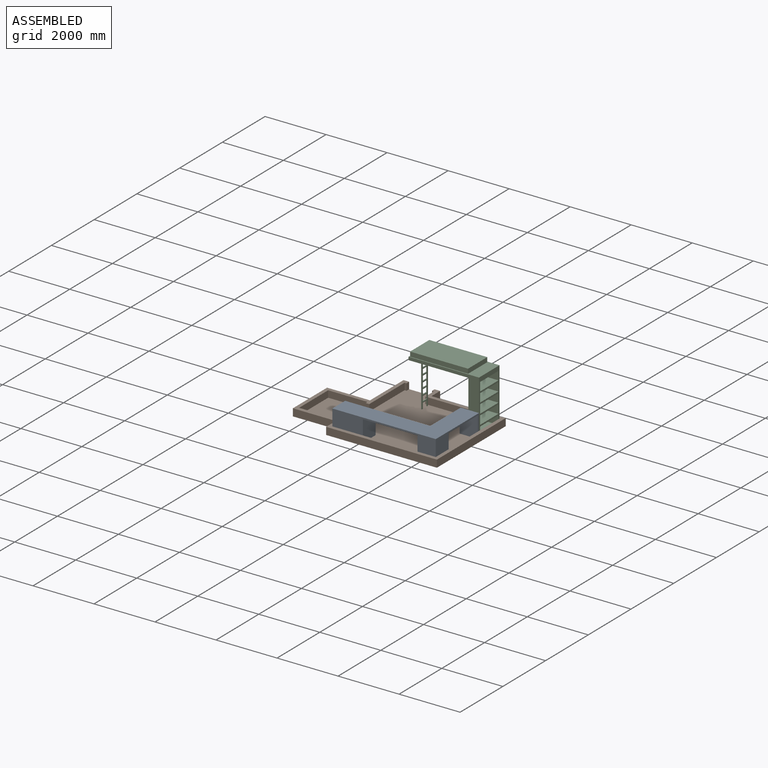
[diagram: assembled view]
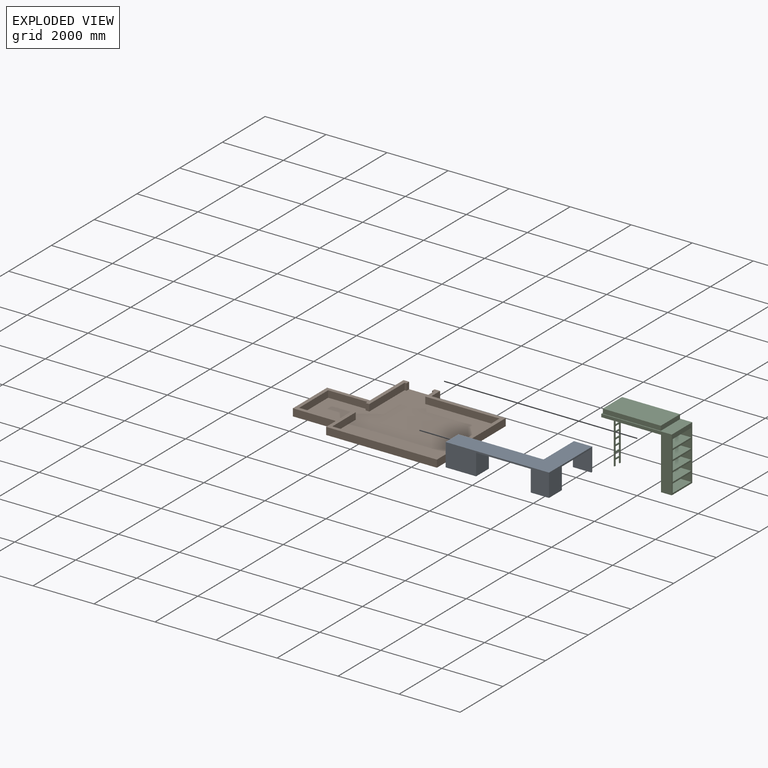
[diagram: exploded view]
GUIDED TOUR — MATED ASSEMBLY (Onshape document 230031c2797c21c1e171ca65, AutoMate assembly 230031c2797c21c1e171ca65_aa69f21b5e3ba76bd54e7748_79c5863198f4fb01ac2dbf42_default)

This assembly has 3 components, labeled P0..P2 below (a component is one placed occurrence of a part; the same part can appear more than once), held together by 5 mates. A mate is a constraint between two components; its type names the relative motion it leaves free:
  PLANAR — leaves sliding in the plane through the listed point (normal = the listed direction) and rotation about that normal free.
Axis/direction vectors are unit vectors and 'through' points are millimeter coordinates, both in the assembly's world frame.

MATES
  1. PLANAR "Planar 6": P0 <-> P1, direction (1.000, 0.000, 0.000) through (581.72, 336.17, 273.49) mm
  2. PLANAR "Planar 5": P0 <-> P1, direction (0.000, -1.000, 0.000) through (-1308.22, -1686.83, -77.21) mm
  3. PLANAR "Planar 3": P2 <-> P1, direction (1.000, 0.000, 0.000) through (581.72, 816.17, 538.37) mm
  4. PLANAR "Planar 2": P2 <-> P1, direction (0.000, 1.000, 0.000) through (231.72, 1296.17, 1223.49) mm
  5. PLANAR "Planar 1": P2 <-> P1, direction (0.000, 0.000, -1.000) through (406.72, 816.17, -476.51) mm

ASSEMBLY ORDER
  1. P2 — the base component [order verified]
  2. P0 [order verified]
  3. P1 [order verified]
Order-tag legend:
  [order verified] — this step's position reverses a verified removal order: the component was checked to insert without passing through the ones already placed.

Of the 3 components, 2 carry the full construction recipe — the FeatureScript program that regenerates the part's solid from scratch; the rest are supplied as boundary geometry only.
Each toured component is shown spotlighted twice — in the assembled view, then in the exploded view, where a leader line traces a displaced component back to its assembled socket (saturated green if recipe-attached, orange if geometry-only; every other component desaturated gray) — followed by its recipe or geometry summary and the mates that hold it.
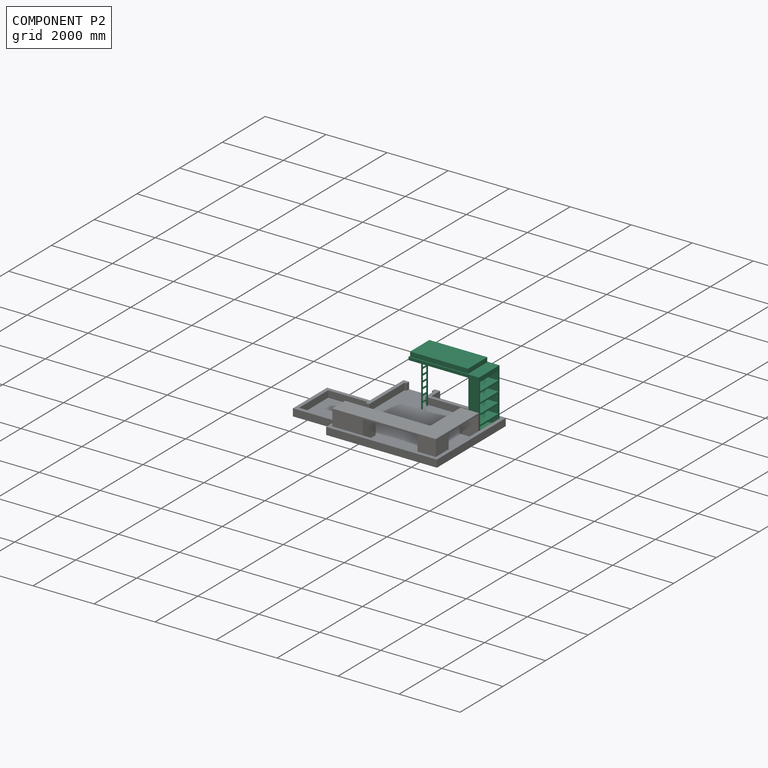
[diagram: component P2 — assembled]
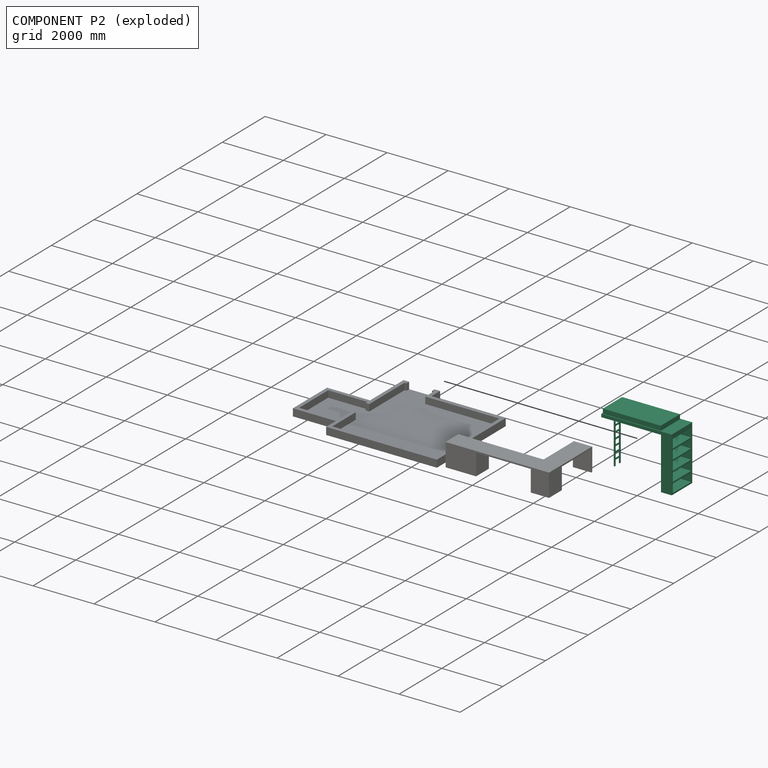
[diagram: component P2 — exploded]
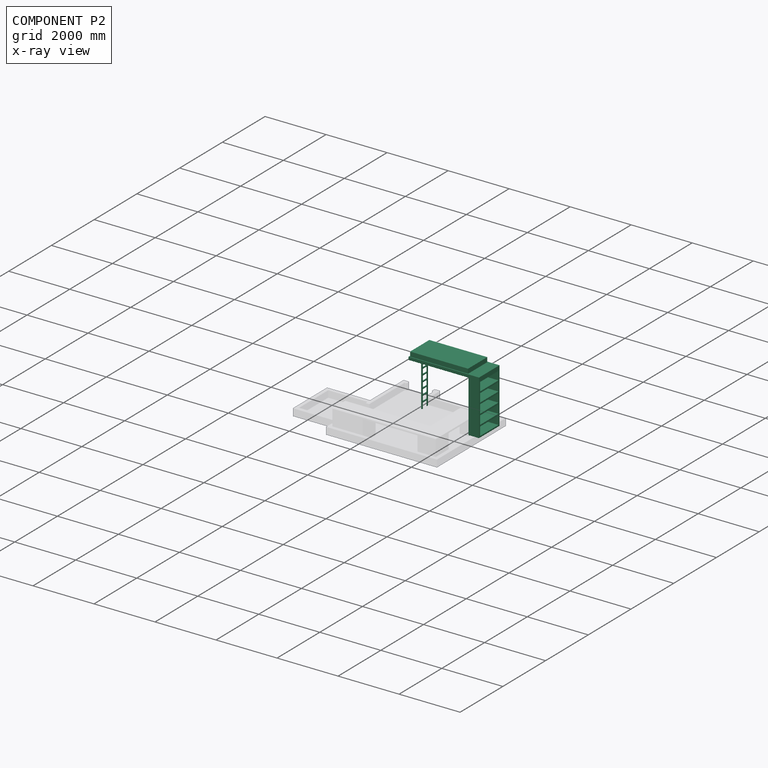
[diagram: component P2 — x-ray view]
COMPONENT P2 — recipe-attached (CADFS 00163201, mesh-verified: the recipe's output STEP matches this component's geometry to below the mesh-comparison resolution (tessellation chordal tolerance ~4.79 mm)).
Held by: PLANAR mate "Planar 3" to P1; PLANAR mate "Planar 2" to P1; PLANAR mate "Planar 1" to P1.
Construction recipe (FeatureScript — the CAD program that rebuilds this solid; sketch coordinates are in the units given by the * unit suffixes, e.g. mm):

FeatureScript 1511;
import(path : "onshape/std/geometry.fs", version : "1511.0");
import(path : "onshape/std/common.fs", version : "1511.0");
const mm = millimeter;
const VERTEX = EntityType.VERTEX;
const EDGE = EntityType.EDGE;
const FACE = EntityType.FACE;
const BODY = EntityType.BODY;
function v(x, y){return vector(x, y);}
function OD(order){return orderDisambiguation(order);}
function OSD(set){return originalSetDisambiguation(set);}
function TD(topology){return topologyDisambiguation(topology);}
function TDD(query){return trueDependencyDisambiguation(query);}
function sQuery(a, b, c) {return sketchEntityQuery(a, b, c);}

annotation { "Feature Type Name" : "Feature", "Feature Type Description" : "" }
export const myFeature = defineFeature(function(context is Context, id is Id, definition is map)
    precondition{}
    {
        {
            var Q0;
            Q0=qCreatedBy(makeId("Top.planeOp"),FACE);
            var sketch = newSketch(context, id + "F0", { "sketchPlane" : qUnion([Q0])});
            skLineSegment(sketch, "E0.bottom", {"start": v(-450, 950) * mm, "end": v(450, 950) * mm});
            skLineSegment(sketch, "E0.top", {"start": v(-450, -950) * mm, "end": v(450, -950) * mm});
            skLineSegment(sketch, "E0.left", {"start": v(-450, 950) * mm, "end": v(-450, -950) * mm});
            skLineSegment(sketch, "E0.right", {"start": v(450, 950) * mm, "end": v(450, -950) * mm});
            skPoint(sketch, "E0.middle", {"position": v(0, 0) * mm});
            skSolve(sketch);
        }
        {
            var Q0;
            Q0 = qSketchRegion(id + "F0", true);
            extrude(context, id + "F1", {"entities" : qUnion([Q0]), "depth" : 150 * mm});
        }
        {
            var Q0;
            Q0=makeQuery(id+"F1.opExtrude","CAP_FACE",FACE,{"disambiguationData":[OSD([sQuery(id+"F0.wireOp",EDGE,"E0.bottom"),sQuery(id+"F0.wireOp",EDGE,"E0.top"),sQuery(id+"F0.wireOp",EDGE,"E0.left"),sQuery(id+"F0.wireOp",EDGE,"E0.right")])],"isStart":true});
            var sketch = newSketch(context, id + "F2", { "sketchPlane" : qUnion([Q0])});
            skLineSegment(sketch, "E1.0", {"start": v(-480, -980) * mm, "end": v(480, -980) * mm, "construction": true});
            skLineSegment(sketch, "E1.1", {"start": v(-480, 980) * mm, "end": v(-480, -980) * mm});
            skLineSegment(sketch, "E1.2", {"start": v(480, 980) * mm, "end": v(-480, 980) * mm});
            skLineSegment(sketch, "E1.3", {"start": v(480, -980) * mm, "end": v(480, 980) * mm});
            skLineSegment(sketch, "E2", {"start": v(-480, -980) * mm, "end": v(-480, -1330) * mm});
            skLineSegment(sketch, "E3", {"start": v(-480, -1330) * mm, "end": v(480, -1330) * mm});
            skLineSegment(sketch, "E4", {"start": v(480, -1330) * mm, "end": v(480, -980) * mm});
            skSolve(sketch);
        }
        {
            var Q0;
            Q0 = qSketchRegion(id + "F2", true);
            extrude(context, id + "F3", {"entities" : qUnion([Q0]), "operationType" : NewBodyOperationType.ADD, "depth" : 100 * mm});
        }
        {
            var Q0;
            Q0=makeQuery(id+"F3.opExtrude","CAP_FACE",FACE,{"disambiguationData":[OSD([sQuery(id+"F2.wireOp",EDGE,"E1.1"),sQuery(id+"F2.wireOp",EDGE,"E1.2"),sQuery(id+"F2.wireOp",EDGE,"E1.3"),sQuery(id+"F2.wireOp",EDGE,"E2"),sQuery(id+"F2.wireOp",EDGE,"E3"),sQuery(id+"F2.wireOp",EDGE,"E4")])],"isStart":false});
            var sketch = newSketch(context, id + "F4", { "sketchPlane" : qUnion([Q0])});
            skLineSegment(sketch, "E5.0", {"start": v(-480, -980) * mm, "end": v(480, -980) * mm});
            skLineSegment(sketch, "E6", {"start": v(-480, -980) * mm, "end": v(-480, -1330) * mm});
            skLineSegment(sketch, "E7", {"start": v(-480, -1330) * mm, "end": v(480, -1330) * mm});
            skLineSegment(sketch, "E8", {"start": v(480, -1330) * mm, "end": v(480, -980) * mm});
            skSolve(sketch);
        }
        {
            var Q0;
            Q0 = qSketchRegion(id + "F4", true);
            extrude(context, id + "F5", {"entities" : qUnion([Q0]), "operationType" : NewBodyOperationType.ADD, "depth" : 1700 * mm});
        }
        {
            var Q0;
            Q0=makeQuery(id+"F5.opExtrude","SWEPT_FACE",FACE,{"disambiguationData":[OSD([sQuery(id+"F4.wireOp",EDGE,"E5.0")])]});
            var sketch = newSketch(context, id + "F6", { "sketchPlane" : qUnion([Q0])});
            skLineSegment(sketch, "E9.bottom", {"start": v(-430, -150) * mm, "end": v(430, -150) * mm});
            skLineSegment(sketch, "E9.top", {"start": v(-430, -430) * mm, "end": v(430, -430) * mm});
            skLineSegment(sketch, "E9.left", {"start": v(-430, -150) * mm, "end": v(-430, -430) * mm});
            skLineSegment(sketch, "E9.right", {"start": v(430, -150) * mm, "end": v(430, -430) * mm});
            skLineSegment(sketch, "E10.bottom", {"start": v(430, -480) * mm, "end": v(-430, -480) * mm});
            skLineSegment(sketch, "E10.top", {"start": v(430, -760) * mm, "end": v(-430, -760) * mm});
            skLineSegment(sketch, "E10.left", {"start": v(430, -480) * mm, "end": v(430, -760) * mm});
            skLineSegment(sketch, "E10.right", {"start": v(-430, -480) * mm, "end": v(-430, -760) * mm});
            skLineSegment(sketch, "E11.bottom", {"start": v(-430, -810) * mm, "end": v(430, -810) * mm});
            skLineSegment(sketch, "E11.top", {"start": v(-430, -1090) * mm, "end": v(430, -1090) * mm});
            skLineSegment(sketch, "E11.left", {"start": v(-430, -810) * mm, "end": v(-430, -1090) * mm});
            skLineSegment(sketch, "E11.right", {"start": v(430, -810) * mm, "end": v(430, -1090) * mm});
            skLineSegment(sketch, "E12.bottom", {"start": v(430, -1140) * mm, "end": v(-430, -1140) * mm});
            skLineSegment(sketch, "E12.top", {"start": v(430, -1420) * mm, "end": v(-430, -1420) * mm});
            skLineSegment(sketch, "E12.left", {"start": v(430, -1140) * mm, "end": v(430, -1420) * mm});
            skLineSegment(sketch, "E12.right", {"start": v(-430, -1140) * mm, "end": v(-430, -1420) * mm});
            skLineSegment(sketch, "E13.bottom", {"start": v(-430, -1470) * mm, "end": v(430, -1470) * mm});
            skLineSegment(sketch, "E13.top", {"start": v(-430, -1750) * mm, "end": v(430, -1750) * mm});
            skLineSegment(sketch, "E13.left", {"start": v(-430, -1470) * mm, "end": v(-430, -1750) * mm});
            skLineSegment(sketch, "E13.right", {"start": v(430, -1470) * mm, "end": v(430, -1750) * mm});
            skPoint(sketch, "E14", {"position": v(0, -150) * mm});
            skLineSegment(sketch, "E15", {"start": v(430, -150) * mm, "end": v(430, -100) * mm, "construction": true});
            skLineSegment(sketch, "E16", {"start": v(430, -430) * mm, "end": v(430, -480) * mm, "construction": true});
            skLineSegment(sketch, "E17", {"start": v(430, -760) * mm, "end": v(430, -810) * mm, "construction": true});
            skLineSegment(sketch, "E18", {"start": v(430, -1090) * mm, "end": v(430, -1140) * mm, "construction": true});
            skLineSegment(sketch, "E19", {"start": v(430, -1420) * mm, "end": v(430, -1470) * mm, "construction": true});
            skLineSegment(sketch, "E20", {"start": v(430, -1750) * mm, "end": v(430, -1800) * mm, "construction": true});
            skLineSegment(sketch, "E21", {"start": v(430, -150) * mm, "end": v(480, -150) * mm, "construction": true});
            skSolve(sketch);
        }
        {
            var Q0;
            Q0 = qSketchRegion(id + "F6", true);
            extrude(context, id + "F7", {"entities" : qUnion([Q0]), "operationType" : NewBodyOperationType.REMOVE, "endBound" : BoundingType.UP_TO_NEXT, "oppositeDirection" : true, "depth" : 25 * mm});
        }
        {
            var Q0;
            Q0=makeQuery(id+"F1.opExtrude","SWEPT_FACE",FACE,{"disambiguationData":[OSD([sQuery(id+"F0.wireOp",EDGE,"E0.top")])]});
            var sketch = newSketch(context, id + "F8", { "sketchPlane" : qUnion([Q0])});
            skLineSegment(sketch, "E22", {"start": v(-480, -100) * mm, "end": v(480, -100) * mm});
            skLineSegment(sketch, "E23", {"start": v(480, -100) * mm, "end": v(-480, -449.41) * mm});
            skLineSegment(sketch, "E24", {"start": v(-480, -449.41) * mm, "end": v(-480, -100) * mm});
            skSolve(sketch);
        }
        {
            var Q0;
            Q0 = qSketchRegion(id + "F8", true);
            extrude(context, id + "F9", {"entities" : qUnion([Q0]), "operationType" : NewBodyOperationType.ADD, "oppositeDirection" : true, "depth" : 50 * mm});
        }
        {
            var Q0;
            Q0=makeQuery(id+"F3.opExtrude","SWEPT_FACE",FACE,{"disambiguationData":[OSD([sQuery(id+"F2.wireOp",EDGE,"E1.2")])]});
            var sketch = newSketch(context, id + "F10", { "sketchPlane" : qUnion([Q0])});
            skLineSegment(sketch, "E25.bottom", {"start": v(-430, 0) * mm, "end": v(-390, 0) * mm});
            skLineSegment(sketch, "E25.top", {"start": v(-430, -1800) * mm, "end": v(-390, -1800) * mm});
            skLineSegment(sketch, "E25.left", {"start": v(-430, 0) * mm, "end": v(-430, -1800) * mm});
            skLineSegment(sketch, "E25.right", {"start": v(-390, 0) * mm, "end": v(-390, -1800) * mm});
            skLineSegment(sketch, "E26.bottom", {"start": v(-190, 0) * mm, "end": v(-150, 0) * mm});
            skLineSegment(sketch, "E26.top", {"start": v(-190, -1800) * mm, "end": v(-150, -1800) * mm});
            skLineSegment(sketch, "E26.left", {"start": v(-190, 0) * mm, "end": v(-190, -1800) * mm});
            skLineSegment(sketch, "E26.right", {"start": v(-150, 0) * mm, "end": v(-150, -1800) * mm});
            skSolve(sketch);
        }
        {
            var Q0;
            Q0 = qSketchRegion(id + "F10", true);
            extrude(context, id + "F11", {"entities" : qUnion([Q0]), "operationType" : NewBodyOperationType.ADD, "depth" : 30 * mm});
        }
        {
            var Q0;
            Q0=makeQuery(id+"F11.opExtrude","CAP_FACE",FACE,{"disambiguationData":[OSD([sQuery(id+"F10.wireOp",EDGE,"E25.bottom"),sQuery(id+"F10.wireOp",EDGE,"E25.top"),sQuery(id+"F10.wireOp",EDGE,"E25.left"),sQuery(id+"F10.wireOp",EDGE,"E25.right")])],"isStart":false});
            var sketch = newSketch(context, id + "F12", { "sketchPlane" : qUnion([Q0])});
            skLineSegment(sketch, "E27.bottom", {"start": v(-390, -180) * mm, "end": v(-190, -180) * mm});
            skLineSegment(sketch, "E27.top", {"start": v(-390, -220) * mm, "end": v(-190, -220) * mm});
            skLineSegment(sketch, "E27.left", {"start": v(-390, -180) * mm, "end": v(-390, -220) * mm});
            skLineSegment(sketch, "E27.right", {"start": v(-190, -180) * mm, "end": v(-190, -220) * mm});
            skLineSegment(sketch, "E28.bottom", {"start": v(-390, -380) * mm, "end": v(-190, -380) * mm});
            skLineSegment(sketch, "E28.top", {"start": v(-390, -420) * mm, "end": v(-190, -420) * mm});
            skLineSegment(sketch, "E28.left", {"start": v(-390, -380) * mm, "end": v(-390, -420) * mm});
            skLineSegment(sketch, "E28.right", {"start": v(-190, -380) * mm, "end": v(-190, -420) * mm});
            skLineSegment(sketch, "E29.bottom", {"start": v(-390, -580) * mm, "end": v(-190, -580) * mm});
            skLineSegment(sketch, "E29.top", {"start": v(-390, -620) * mm, "end": v(-190, -620) * mm});
            skLineSegment(sketch, "E29.left", {"start": v(-390, -580) * mm, "end": v(-390, -620) * mm});
            skLineSegment(sketch, "E29.right", {"start": v(-190, -580) * mm, "end": v(-190, -620) * mm});
            skLineSegment(sketch, "E30.bottom", {"start": v(-390, -780) * mm, "end": v(-190, -780) * mm});
            skLineSegment(sketch, "E30.top", {"start": v(-390, -820) * mm, "end": v(-190, -820) * mm});
            skLineSegment(sketch, "E30.left", {"start": v(-390, -780) * mm, "end": v(-390, -820) * mm});
            skLineSegment(sketch, "E30.right", {"start": v(-190, -780) * mm, "end": v(-190, -820) * mm});
            skLineSegment(sketch, "E31.bottom", {"start": v(-390, -980) * mm, "end": v(-190, -980) * mm});
            skLineSegment(sketch, "E31.top", {"start": v(-390, -1020) * mm, "end": v(-190, -1020) * mm});
            skLineSegment(sketch, "E31.left", {"start": v(-390, -980) * mm, "end": v(-390, -1020) * mm});
            skLineSegment(sketch, "E31.right", {"start": v(-190, -980) * mm, "end": v(-190, -1020) * mm});
            skLineSegment(sketch, "E32.bottom", {"start": v(-390, -1180) * mm, "end": v(-190, -1180) * mm});
            skLineSegment(sketch, "E32.top", {"start": v(-390, -1220) * mm, "end": v(-190, -1220) * mm});
            skLineSegment(sketch, "E32.left", {"start": v(-390, -1180) * mm, "end": v(-390, -1220) * mm});
            skLineSegment(sketch, "E32.right", {"start": v(-190, -1180) * mm, "end": v(-190, -1220) * mm});
            skLineSegment(sketch, "E33.bottom", {"start": v(-390, -1380) * mm, "end": v(-190, -1380) * mm});
            skLineSegment(sketch, "E33.top", {"start": v(-390, -1420) * mm, "end": v(-190, -1420) * mm});
            skLineSegment(sketch, "E33.left", {"start": v(-390, -1380) * mm, "end": v(-390, -1420) * mm});
            skLineSegment(sketch, "E33.right", {"start": v(-190, -1380) * mm, "end": v(-190, -1420) * mm});
            skLineSegment(sketch, "E34.bottom", {"start": v(-390, -1580) * mm, "end": v(-190, -1580) * mm});
            skLineSegment(sketch, "E34.top", {"start": v(-390, -1620) * mm, "end": v(-190, -1620) * mm});
            skLineSegment(sketch, "E34.left", {"start": v(-390, -1580) * mm, "end": v(-390, -1620) * mm});
            skLineSegment(sketch, "E34.right", {"start": v(-190, -1580) * mm, "end": v(-190, -1620) * mm});
            skLineSegment(sketch, "E35", {"start": v(-390, -220) * mm, "end": v(-390, -380) * mm, "construction": true});
            skLineSegment(sketch, "E36", {"start": v(-390, -420) * mm, "end": v(-390, -580) * mm, "construction": true});
            skLineSegment(sketch, "E37", {"start": v(-390, -620) * mm, "end": v(-390, -780) * mm, "construction": true});
            skLineSegment(sketch, "E38", {"start": v(-390, -820) * mm, "end": v(-390, -980) * mm, "construction": true});
            skLineSegment(sketch, "E39", {"start": v(-390, -1020) * mm, "end": v(-390, -1180) * mm, "construction": true});
            skLineSegment(sketch, "E40", {"start": v(-390, -1220) * mm, "end": v(-390, -1380) * mm, "construction": true});
            skLineSegment(sketch, "E41", {"start": v(-390, -1420) * mm, "end": v(-390, -1580) * mm, "construction": true});
            skLineSegment(sketch, "E42", {"start": v(-190, -180) * mm, "end": v(-190, 0) * mm, "construction": true});
            skLineSegment(sketch, "E43", {"start": v(-190, -1620) * mm, "end": v(-190, -1800) * mm, "construction": true});
            skSolve(sketch);
        }
        {
            var Q0;
            Q0 = qSketchRegion(id + "F12", true);
            var Q1;
            {var subQ4=sQuery(id+"F2.wireOp",EDGE,"E1.2");Q1=makeQuery(id+"F11.boolean.opBoolean","SPLIT",FACE,{"disambiguationData":[TD([makeQuery(id+"F5.opExtrude","SWEPT_FACE",FACE,{"disambiguationData":[OSD([sQuery(id+"F4.wireOp",EDGE,"E8")])]})])],"derivedFrom":makeQuery(id+"F3.opExtrude","SWEPT_FACE",FACE,{"disambiguationData":[OSD([subQ4])]})});}
            extrude(context, id + "F13", {"entities" : qUnion([Q0]), "operationType" : NewBodyOperationType.ADD, "endBound" : BoundingType.UP_TO_SURFACE, "oppositeDirection" : true, "endBoundEntityFace" : qUnion([Q1]), "depth" : 25 * mm});
        }
    });
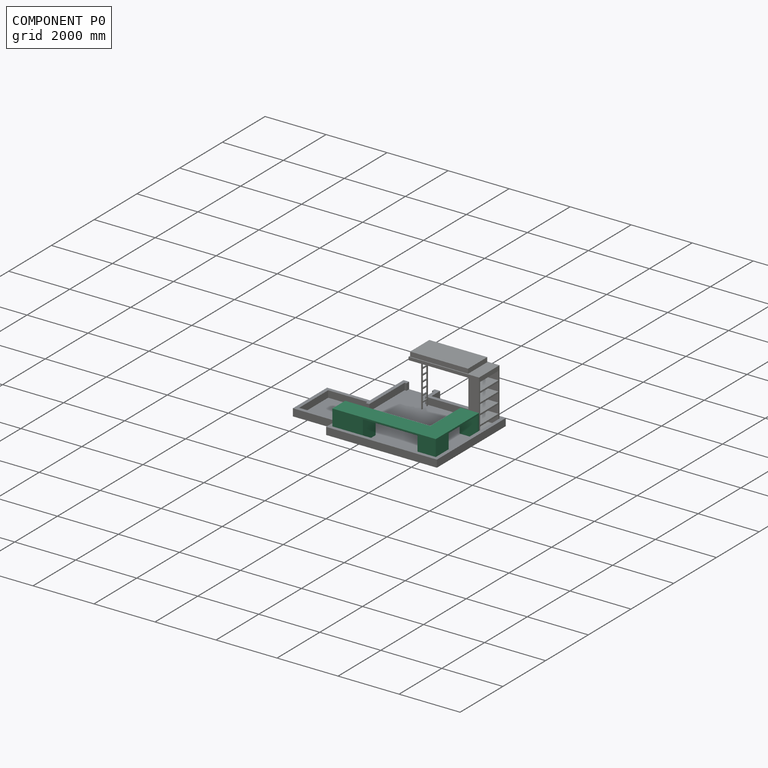
[diagram: component P0 — assembled]
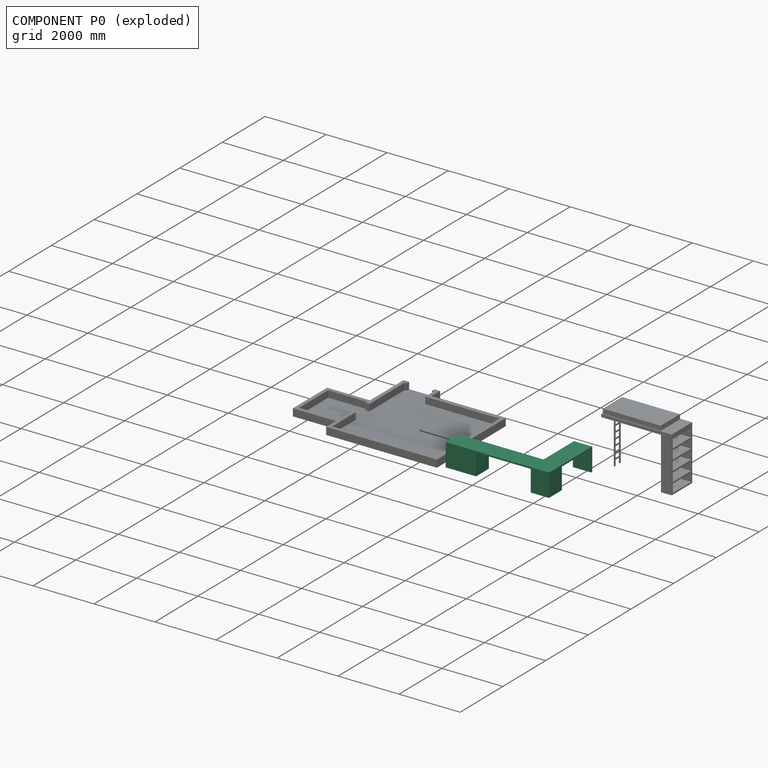
[diagram: component P0 — exploded]
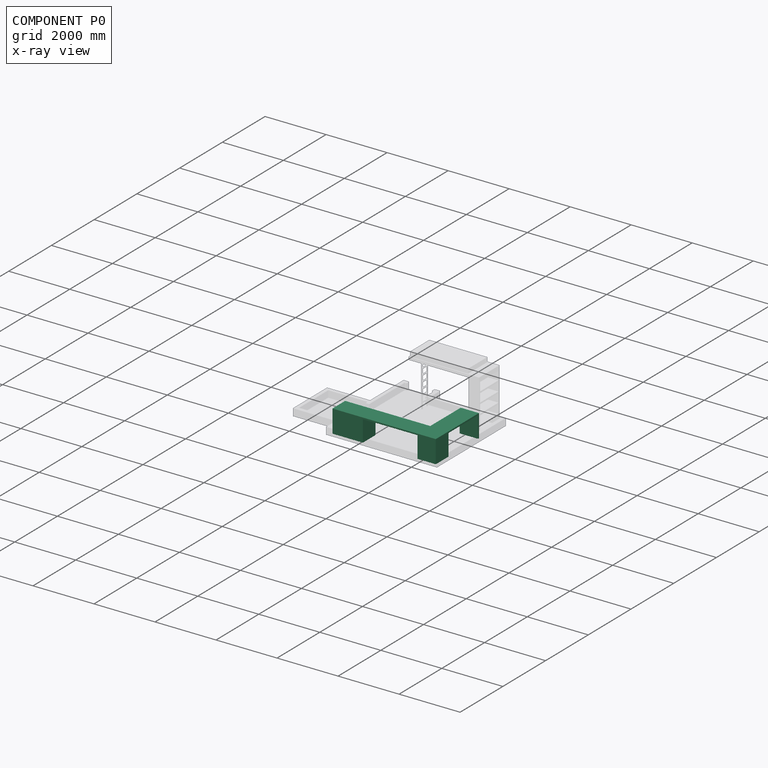
[diagram: component P0 — x-ray view]
COMPONENT P0 — recipe-attached (CADFS 00163205, mesh-verified: the recipe's output STEP matches this component's geometry to below the mesh-comparison resolution (tessellation chordal tolerance ~6.03 mm)).
Held by: PLANAR mate "Planar 6" to P1; PLANAR mate "Planar 5" to P1.
Construction recipe (FeatureScript — the CAD program that rebuilds this solid; sketch coordinates are in the units given by the * unit suffixes, e.g. mm):

FeatureScript 1511;
import(path : "onshape/std/geometry.fs", version : "1511.0");
import(path : "onshape/std/common.fs", version : "1511.0");
const mm = millimeter;
const VERTEX = EntityType.VERTEX;
const EDGE = EntityType.EDGE;
const FACE = EntityType.FACE;
const BODY = EntityType.BODY;
function v(x, y){return vector(x, y);}
function OD(order){return orderDisambiguation(order);}
function OSD(set){return originalSetDisambiguation(set);}
function TD(topology){return topologyDisambiguation(topology);}
function TDD(query){return trueDependencyDisambiguation(query);}
function sQuery(a, b, c) {return sketchEntityQuery(a, b, c);}

annotation { "Feature Type Name" : "Feature", "Feature Type Description" : "" }
export const myFeature = defineFeature(function(context is Context, id is Id, definition is map)
    precondition{}
    {
        {
            var Q0;
            Q0=qCreatedBy(makeId("Top.planeOp"),FACE);
            var sketch = newSketch(context, id + "F0", { "sketchPlane" : qUnion([Q0])});
            skLineSegment(sketch, "E0.top", {"start": v(-1423, 0) * mm, "end": v(0, 0) * mm});
            skLineSegment(sketch, "E0.left", {"start": v(-1423, 600) * mm, "end": v(-1423, 0) * mm});
            skLineSegment(sketch, "E1.top", {"start": v(0, -2791) * mm, "end": v(600, -2791) * mm});
            skLineSegment(sketch, "E1.right", {"start": v(600, 600) * mm, "end": v(600, -2791) * mm});
            skLineSegment(sketch, "E2", {"start": v(0, 0) * mm, "end": v(0, -2791) * mm});
            skLineSegment(sketch, "E3", {"start": v(-1423, 600) * mm, "end": v(600, 600) * mm});
            skSolve(sketch);
        }
        {
            var Q0;
            Q0 = qSketchRegion(id + "F0", true);
            extrude(context, id + "F1", {"entities" : qUnion([Q0]), "oppositeDirection" : true, "depth" : 50 * mm});
        }
        {
            var Q0;
            Q0=makeQuery(id+"F1.opExtrude","CAP_FACE",FACE,{"disambiguationData":[OSD([sQuery(id+"F0.wireOp",EDGE,"E0.top"),sQuery(id+"F0.wireOp",EDGE,"E0.left"),sQuery(id+"F0.wireOp",EDGE,"E1.top"),sQuery(id+"F0.wireOp",EDGE,"E1.right"),sQuery(id+"F0.wireOp",EDGE,"E2"),sQuery(id+"F0.wireOp",EDGE,"E3")])],"isStart":false});
            var sketch = newSketch(context, id + "F2", { "sketchPlane" : qUnion([Q0])});
            skLineSegment(sketch, "E4.bottom", {"start": v(-1423, 0) * mm, "end": v(-1373, 0) * mm});
            skLineSegment(sketch, "E4.top", {"start": v(-1423, -600) * mm, "end": v(-1373, -600) * mm});
            skLineSegment(sketch, "E4.left", {"start": v(-1423, 0) * mm, "end": v(-1423, -600) * mm});
            skLineSegment(sketch, "E4.right", {"start": v(-1373, 0) * mm, "end": v(-1373, -600) * mm});
            skLineSegment(sketch, "E5.bottom", {"start": v(0, 0) * mm, "end": v(600, 0) * mm});
            skLineSegment(sketch, "E5.top", {"start": v(0, -600) * mm, "end": v(600, -600) * mm});
            skLineSegment(sketch, "E5.left", {"start": v(0, 0) * mm, "end": v(0, -600) * mm});
            skLineSegment(sketch, "E5.right", {"start": v(600, 0) * mm, "end": v(600, -600) * mm});
            skLineSegment(sketch, "E6.bottom", {"start": v(0, 2791) * mm, "end": v(600, 2791) * mm});
            skLineSegment(sketch, "E6.top", {"start": v(0, 1791) * mm, "end": v(600, 1791) * mm});
            skLineSegment(sketch, "E6.left", {"start": v(0, 2791) * mm, "end": v(0, 1791) * mm});
            skLineSegment(sketch, "E6.right", {"start": v(600, 2791) * mm, "end": v(600, 1791) * mm});
            skSolve(sketch);
        }
        {
            var Q0;
            Q0 = qSketchRegion(id + "F2", true);
            extrude(context, id + "F3", {"entities" : qUnion([Q0]), "operationType" : NewBodyOperationType.ADD, "depth" : 700 * mm});
        }
    });
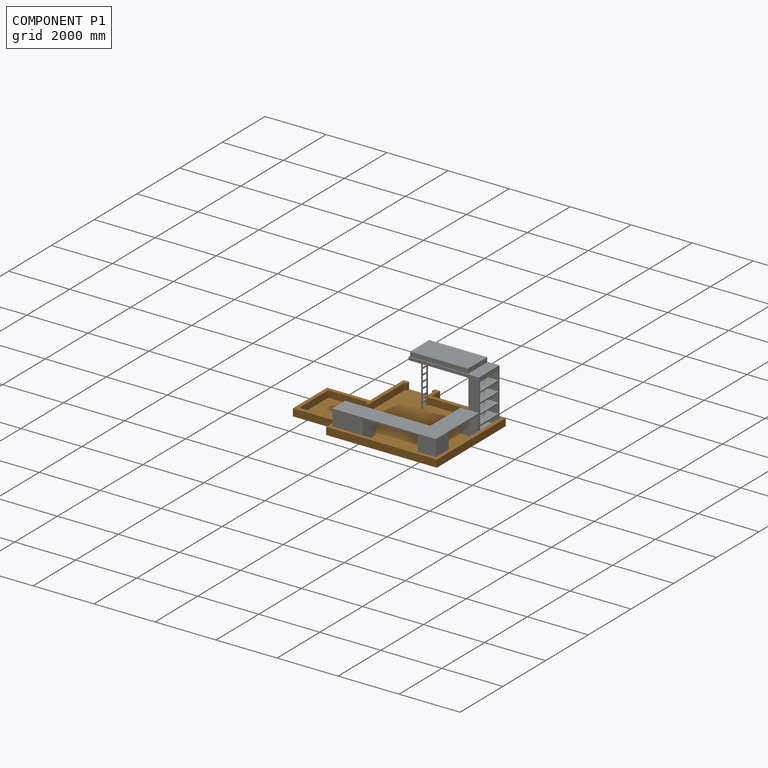
[diagram: component P1 — assembled]
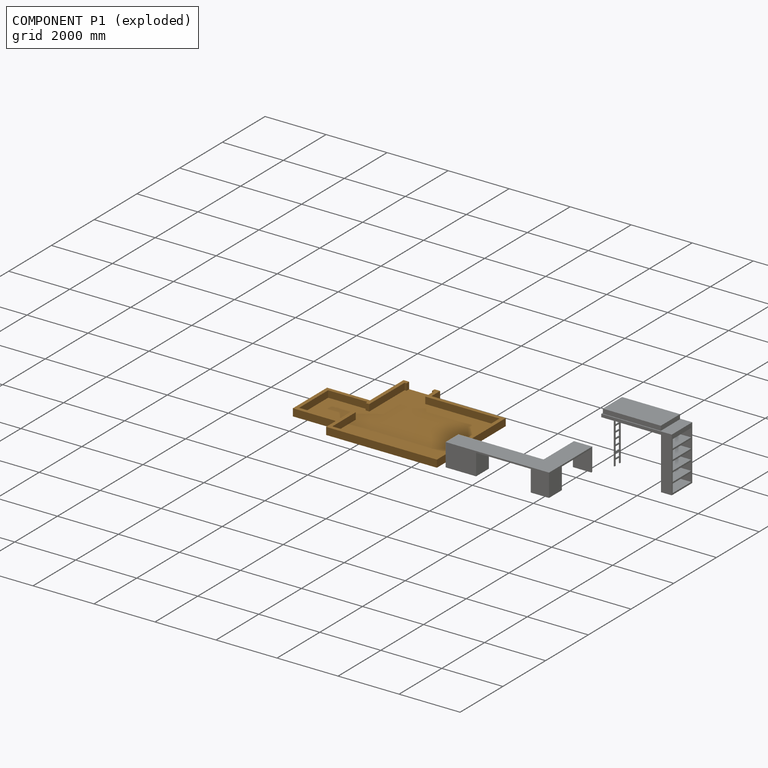
[diagram: component P1 — exploded]
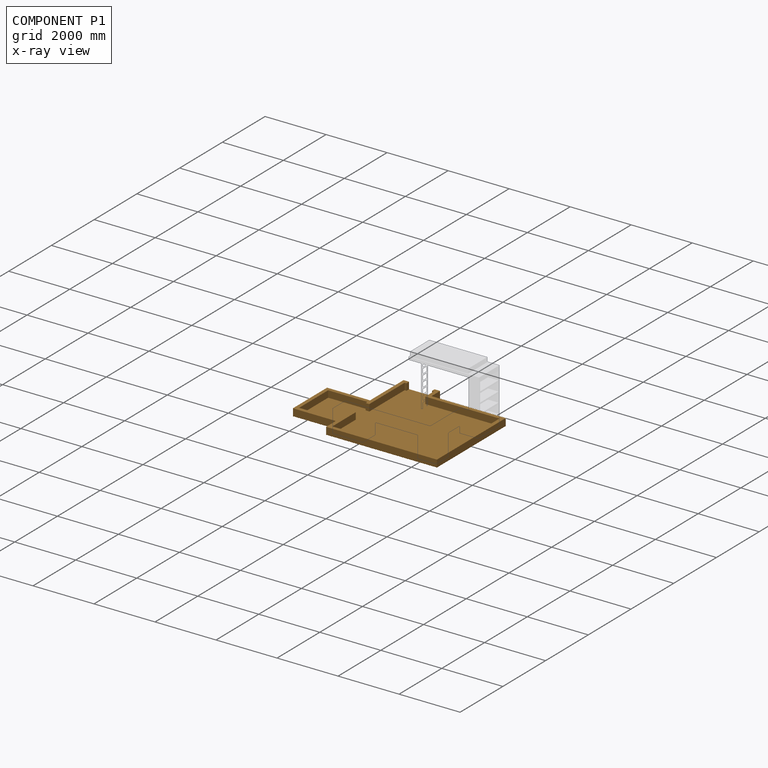
[diagram: component P1 — x-ray view]
COMPONENT P1 — geometry summary (no construction recipe available for this part):
  bounding box: 5039.0 x 3626.0 x 240.0 mm
  B-rep topology: 1 solid, 30 faces, 168 edges
  volume: 730862300 mm^3 (17% of its bounding box)
Held by: PLANAR mate "Planar 6" to P0; PLANAR mate "Planar 5" to P0; PLANAR mate "Planar 3" to P2; PLANAR mate "Planar 2" to P2; PLANAR mate "Planar 1" to P2.
PROVENANCE & LICENSES
Assembly (occurrences, transforms, mates, per-part STEP geometry): AutoMate dataset, Zenodo record 7776208, CC0.
Construction recipes: CADFS (HuggingFace VladPyatov/CADFS, CC-BY-4.0, layered over the ABC dataset), FeatureScript reconstruction programs keyed by ABC model id.
Join: ABC meta listings map ABC model id -> Onshape documentId; within a shared document, parts are matched by geometric signature (bounding-box dims + volume at 0.1% relative tolerance, exact B-rep face/solid counts).
Verification: 2 of this assembly's 3 components carry a recipe attachment, and every attachment is mesh-verified: the CADFS STEP and the AutoMate member STEP were compared as meshes in their shared local frame (symmetric sampled-point-to-mesh distance); worst across the 2 attachments: below the mesh-comparison resolution (tessellation chordal tolerance ~6.03 mm) on a 4019 mm part.
Renders: orthographic iso camera (az 35 / el 25); the floor grid conveys scale (grid pitch printed in each image; no ruler). In the exploded view each component is displaced by its stored offset vector: the offsets alone carry the explosion direction (mate normal/axis signs are not orientation cues and do not encode it), and separation distances are assigned per mate-chain, not proportionally to assembly-order depth.
